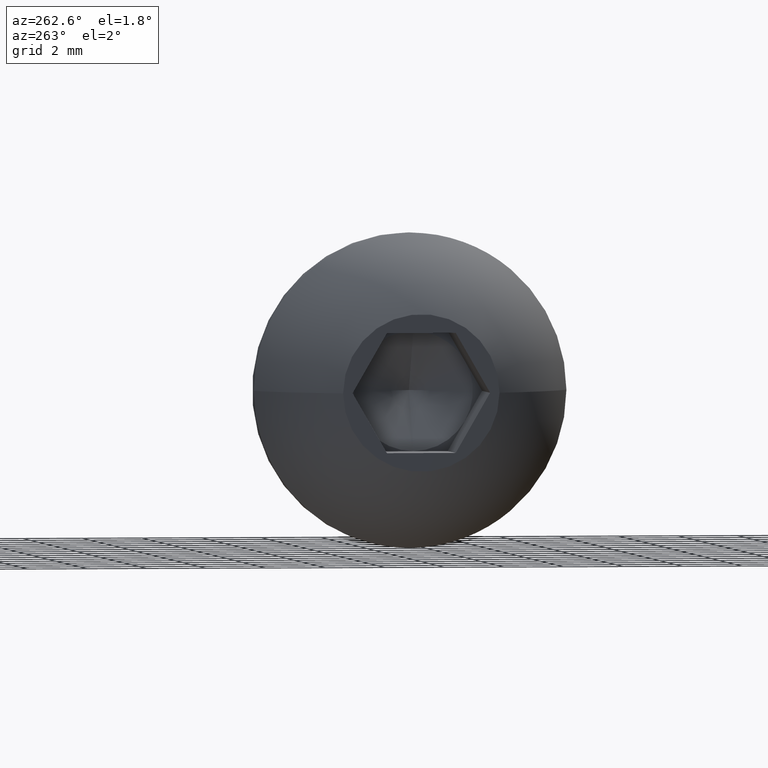
[diagram: clean part render]
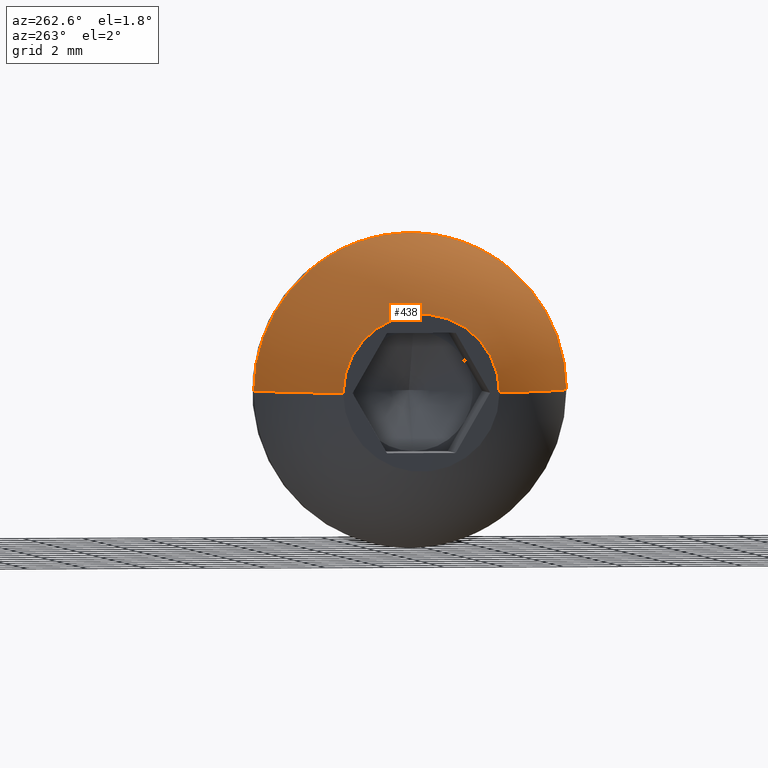
[diagram: same view with one face highlighted and labeled with its STEP entity id]
A machine part, auxiliary view. The second image highlights one B-rep face of the part: STEP entity #438.
In plain terms, the highlighted spherical surface has radius 5.6469 mm.
Its self-contained STEP definition (entity closure, byte-faithful):
#19 = DIRECTION ( 'NONE',  ( -1.000000000000000000, -0.000000000000000000, -0.000000000000000000 ) ) ;
#27 = DIRECTION ( 'NONE',  ( 0.000000000000000000, 1.000000000000000000, 0.000000000000000000 ) ) ;
#32 = AXIS2_PLACEMENT_3D ( 'NONE', #377, #19, #558 ) ;
#57 = DIRECTION ( 'NONE',  ( 1.000000000000000000, 0.000000000000000000, 0.000000000000000000 ) ) ;
#90 = EDGE_CURVE ( 'NONE', #139, #436, #502, .T. ) ;
#91 = DIRECTION ( 'NONE',  ( 0.000000000000000000, 0.000000000000000000, -1.000000000000000000 ) ) ;
#122 = DIRECTION ( 'NONE',  ( 0.000000000000000000, 1.224646799147353207E-16, -1.000000000000000000 ) ) ;
#139 = VERTEX_POINT ( 'NONE', #428 ) ;
#142 = AXIS2_PLACEMENT_3D ( 'NONE', #500, #311, #544 ) ;
#150 = CARTESIAN_POINT ( 'NONE',  ( 8.673617379884035472E-16, 2.625000000000000000, 0.000000000000000000 ) ) ;
#156 = CIRCLE ( 'NONE', #230, 5.646916974785816556 ) ;
#195 = EDGE_CURVE ( 'NONE', #688, #436, #536, .T. ) ;
#212 = ORIENTED_EDGE ( 'NONE', *, *, #509, .F. ) ;
#219 = EDGE_CURVE ( 'NONE', #572, #139, #394, .T. ) ;
#230 = AXIS2_PLACEMENT_3D ( 'NONE', #297, #122, #708 ) ;
#235 = ORIENTED_EDGE ( 'NONE', *, *, #669, .T. ) ;
#294 = AXIS2_PLACEMENT_3D ( 'NONE', #508, #91, #27 ) ;
#297 = CARTESIAN_POINT ( 'NONE',  ( 4.999704623287675176, -7.806255641895631925E-15, 0.000000000000000000 ) ) ;
#311 = DIRECTION ( 'NONE',  ( -1.000000000000000000, -0.000000000000000000, -0.000000000000000000 ) ) ;
#329 = CARTESIAN_POINT ( 'NONE',  ( 8.673617379884035472E-16, 0.000000000000000000, 0.000000000000000000 ) ) ;
#332 = ORIENTED_EDGE ( 'NONE', *, *, #90, .T. ) ;
#334 = SPHERICAL_SURFACE ( 'NONE', #294, 5.646916974785816556 ) ;
#367 = CARTESIAN_POINT ( 'NONE',  ( 4.999704623287675176, -7.806255641895631925E-15, 0.000000000000000000 ) ) ;
#377 = CARTESIAN_POINT ( 'NONE',  ( 2.919999999999999929, 0.000000000000000000, 0.000000000000000000 ) ) ;
#394 = CIRCLE ( 'NONE', #32, 5.249999999999997335 ) ;
#428 = CARTESIAN_POINT ( 'NONE',  ( 2.919999999999999929, 5.249999999999997335, 0.000000000000000000 ) ) ;
#432 = DIRECTION ( 'NONE',  ( 0.000000000000000000, 0.000000000000000000, 1.000000000000000000 ) ) ;
#433 = VERTEX_POINT ( 'NONE', #447 ) ;
#436 = VERTEX_POINT ( 'NONE', #150 ) ;
#438 = ADVANCED_FACE ( 'NONE', ( #567 ), #334, .T. ) ;
#447 = CARTESIAN_POINT ( 'NONE',  ( 2.919999999999999929, -5.250000000000005329, -6.429395695523601195E-16 ) ) ;
#462 = ORIENTED_EDGE ( 'NONE', *, *, #219, .T. ) ;
#480 = AXIS2_PLACEMENT_3D ( 'NONE', #367, #718, #57 ) ;
#481 = CIRCLE ( 'NONE', #142, 5.249999999999997335 ) ;
#500 = CARTESIAN_POINT ( 'NONE',  ( 2.919999999999999929, 0.000000000000000000, 0.000000000000000000 ) ) ;
#502 = CIRCLE ( 'NONE', #480, 5.646916974785816556 ) ;
#507 = ORIENTED_EDGE ( 'NONE', *, *, #195, .F. ) ;
#508 = CARTESIAN_POINT ( 'NONE',  ( 4.999704623287675176, -7.806255641895631925E-15, 0.000000000000000000 ) ) ;
#509 = EDGE_CURVE ( 'NONE', #433, #688, #156, .T. ) ;
#529 = CARTESIAN_POINT ( 'NONE',  ( 2.919999999999999929, 0.000000000000000000, 5.249999999999997335 ) ) ;
#536 = CIRCLE ( 'NONE', #723, 2.625000000000000444 ) ;
#544 = DIRECTION ( 'NONE',  ( 0.000000000000000000, 0.000000000000000000, 1.000000000000000000 ) ) ;
#558 = DIRECTION ( 'NONE',  ( 0.000000000000000000, 0.000000000000000000, 1.000000000000000000 ) ) ;
#567 = FACE_OUTER_BOUND ( 'NONE', #609, .T. ) ;
#572 = VERTEX_POINT ( 'NONE', #529 ) ;
#608 = DIRECTION ( 'NONE',  ( -1.000000000000000000, -0.000000000000000000, -0.000000000000000000 ) ) ;
#609 = EDGE_LOOP ( 'NONE', ( #212, #235, #462, #332, #507 ) ) ;
#669 = EDGE_CURVE ( 'NONE', #433, #572, #481, .T. ) ;
#678 = CARTESIAN_POINT ( 'NONE',  ( 8.673617379884035472E-16, -2.625000000000000444, -4.822046771642698431E-16 ) ) ;
#688 = VERTEX_POINT ( 'NONE', #678 ) ;
#708 = DIRECTION ( 'NONE',  ( 0.000000000000000000, 1.000000000000000000, 1.224646799147353207E-16 ) ) ;
#718 = DIRECTION ( 'NONE',  ( 0.000000000000000000, 0.000000000000000000, 1.000000000000000000 ) ) ;
#723 = AXIS2_PLACEMENT_3D ( 'NONE', #329, #608, #432 ) ;